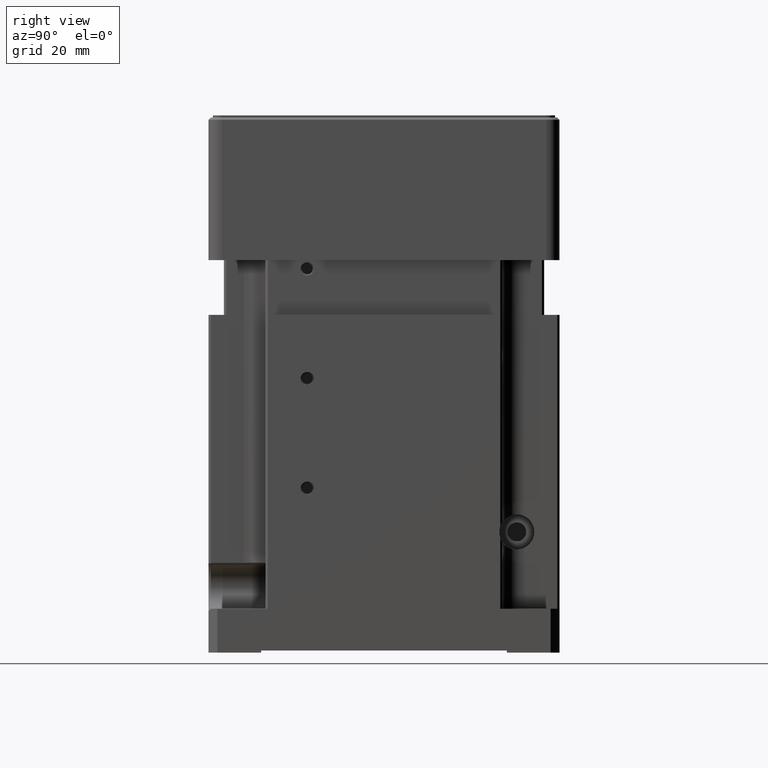
[diagram: clean part render]
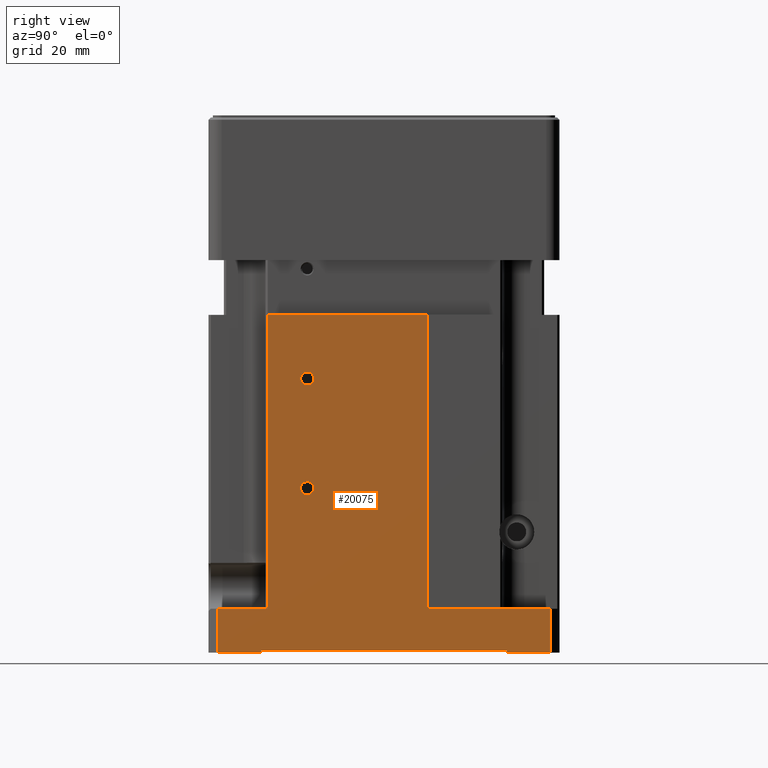
[diagram: same view with one face highlighted and labeled with its STEP entity id]
A machine part, right view. The second image highlights one B-rep face of the part: STEP entity #20075.
In plain terms, the highlighted planar face has unit normal (1, 0, 0).
Its self-contained STEP definition (entity closure, byte-faithful):
#988 = EDGE_CURVE ( 'NONE', #23494, #28617, #30825, .T. ) ;
#1009 = LINE ( 'NONE', #33449, #7324 ) ;
#1640 = DIRECTION ( 'NONE',  ( 0.000000000000000000, 0.000000000000000000, -1.000000000000000000 ) ) ;
#1961 = ORIENTED_EDGE ( 'NONE', *, *, #4837, .F. ) ;
#2348 = PLANE ( 'NONE',  #36127 ) ;
#2568 = ORIENTED_EDGE ( 'NONE', *, *, #6456, .F. ) ;
#3781 = VERTEX_POINT ( 'NONE', #13484 ) ;
#4111 = CARTESIAN_POINT ( 'NONE',  ( 40.00000000000000000, 28.00000000000000000, -10.00000000000000000 ) ) ;
#4299 = EDGE_CURVE ( 'NONE', #15861, #37710, #37614, .T. ) ;
#4385 = EDGE_CURVE ( 'NONE', #13564, #12888, #36425, .T. ) ;
#4479 = ORIENTED_EDGE ( 'NONE', *, *, #18604, .F. ) ;
#4837 = EDGE_CURVE ( 'NONE', #15473, #18441, #16424, .T. ) ;
#4859 = VECTOR ( 'NONE', #26946, 1000.000000000000000 ) ;
#4867 = FACE_BOUND ( 'NONE', #25379, .T. ) ;
#4869 = DIRECTION ( 'NONE',  ( 1.000000000000000000, 0.000000000000000000, 0.000000000000000000 ) ) ;
#4870 = EDGE_CURVE ( 'NONE', #37710, #19432, #23120, .T. ) ;
#5113 = EDGE_LOOP ( 'NONE', ( #30044, #26445, #4479, #29924, #25571, #35674, #11032, #12658, #21467, #1961, #17691, #26796 ) ) ;
#5131 = EDGE_CURVE ( 'NONE', #3781, #37586, #6621, .T. ) ;
#5235 = FACE_BOUND ( 'NONE', #15858, .T. ) ;
#5369 = VECTOR ( 'NONE', #1640, 1000.000000000000000 ) ;
#5545 = CARTESIAN_POINT ( 'NONE',  ( 40.00000000000000000, -26.50000000000000000, 0.000000000000000000 ) ) ;
#6219 = DIRECTION ( 'NONE',  ( 1.000000000000000000, 0.000000000000000000, 0.000000000000000000 ) ) ;
#6443 = VERTEX_POINT ( 'NONE', #31184 ) ;
#6456 = EDGE_CURVE ( 'NONE', #28617, #23494, #29513, .T. ) ;
#6621 = LINE ( 'NONE', #4111, #31114 ) ;
#6625 = LINE ( 'NONE', #18154, #26298 ) ;
#6846 = CARTESIAN_POINT ( 'NONE',  ( 40.00000000000000000, 10.00000000000000000, 0.000000000000000000 ) ) ;
#6963 = LINE ( 'NONE', #18664, #4859 ) ;
#7324 = VECTOR ( 'NONE', #24439, 1000.000000000000000 ) ;
#7553 = ORIENTED_EDGE ( 'NONE', *, *, #21522, .F. ) ;
#8966 = AXIS2_PLACEMENT_3D ( 'NONE', #17693, #14410, #20165 ) ;
#9328 = CARTESIAN_POINT ( 'NONE',  ( 40.00000000000000000, -38.00000000000000000, -10.00000000000000000 ) ) ;
#9457 = VECTOR ( 'NONE', #14906, 1000.000000000000000 ) ;
#9508 = DIRECTION ( 'NONE',  ( 0.000000000000000000, 0.000000000000000000, 1.000000000000000000 ) ) ;
#9530 = LINE ( 'NONE', #6846, #9457 ) ;
#9605 = CARTESIAN_POINT ( 'NONE',  ( 40.00000000000000000, -28.00000000000000000, -9.500000000000000000 ) ) ;
#9623 = DIRECTION ( 'NONE',  ( 0.000000000000000000, -1.000000000000000000, 0.000000000000000000 ) ) ;
#10631 = CARTESIAN_POINT ( 'NONE',  ( 40.00000000000000000, -38.00000000000000000, -10.00000000000000000 ) ) ;
#10857 = CARTESIAN_POINT ( 'NONE',  ( 40.00000000000000000, -38.00000000000000000, -10.00000000000000000 ) ) ;
#11032 = ORIENTED_EDGE ( 'NONE', *, *, #35791, .F. ) ;
#11088 = AXIS2_PLACEMENT_3D ( 'NONE', #35751, #17513, #9623 ) ;
#11698 = CIRCLE ( 'NONE', #11088, 1.500000000000001332 ) ;
#11862 = CARTESIAN_POINT ( 'NONE',  ( 40.00000000000000000, -28.00000000000000000, -10.00000000000000000 ) ) ;
#12658 = ORIENTED_EDGE ( 'NONE', *, *, #5131, .T. ) ;
#12888 = VERTEX_POINT ( 'NONE', #11862 ) ;
#13484 = CARTESIAN_POINT ( 'NONE',  ( 40.00000000000000000, 28.00000000000000000, -10.00000000000000000 ) ) ;
#13546 = DIRECTION ( 'NONE',  ( 0.000000000000000000, 1.000000000000000000, 0.000000000000000000 ) ) ;
#13564 = VERTEX_POINT ( 'NONE', #10631 ) ;
#13864 = CARTESIAN_POINT ( 'NONE',  ( 40.00000000000000000, -17.50000000000000000, 52.50000000000000000 ) ) ;
#14410 = DIRECTION ( 'NONE',  ( 1.000000000000000000, 0.000000000000000000, 0.000000000000000000 ) ) ;
#14845 = CARTESIAN_POINT ( 'NONE',  ( 40.00000000000000000, -17.50000000000000000, 27.50000000000000000 ) ) ;
#14906 = DIRECTION ( 'NONE',  ( 0.000000000000000000, 0.000000000000000000, 1.000000000000000000 ) ) ;
#15296 = VERTEX_POINT ( 'NONE', #32673 ) ;
#15473 = VERTEX_POINT ( 'NONE', #16082 ) ;
#15858 = EDGE_LOOP ( 'NONE', ( #7553, #18919 ) ) ;
#15861 = VERTEX_POINT ( 'NONE', #32160 ) ;
#15893 = CARTESIAN_POINT ( 'NONE',  ( 40.00000000000000000, 28.00000000000000000, -9.500000000000000000 ) ) ;
#16082 = CARTESIAN_POINT ( 'NONE',  ( 40.00000000000000000, 10.00000000000000000, 0.000000000000000000 ) ) ;
#16229 = CARTESIAN_POINT ( 'NONE',  ( 40.00000000000000000, 10.00000000000000000, 67.00000000000000000 ) ) ;
#16424 = LINE ( 'NONE', #34263, #37902 ) ;
#16577 = CARTESIAN_POINT ( 'NONE',  ( 40.00000000000000000, -40.00000000000000000, 0.000000000000000000 ) ) ;
#16580 = DIRECTION ( 'NONE',  ( 0.000000000000000000, 1.000000000000000000, 0.000000000000000000 ) ) ;
#16787 = CARTESIAN_POINT ( 'NONE',  ( 40.00000000000000000, -16.00000000000000000, 52.50000000000000000 ) ) ;
#17092 = AXIS2_PLACEMENT_3D ( 'NONE', #14845, #6219, #32711 ) ;
#17278 = EDGE_CURVE ( 'NONE', #18441, #37586, #30853, .T. ) ;
#17384 = CARTESIAN_POINT ( 'NONE',  ( 40.00000000000000000, 38.00000000000000000, 0.000000000000000000 ) ) ;
#17513 = DIRECTION ( 'NONE',  ( 1.000000000000000000, 0.000000000000000000, 0.000000000000000000 ) ) ;
#17691 = ORIENTED_EDGE ( 'NONE', *, *, #27167, .T. ) ;
#17693 = CARTESIAN_POINT ( 'NONE',  ( 40.00000000000000000, -17.50000000000000000, 52.50000000000000000 ) ) ;
#18154 = CARTESIAN_POINT ( 'NONE',  ( 40.00000000000000000, -28.00000000000000000, -10.00000000000000000 ) ) ;
#18292 = VECTOR ( 'NONE', #37161, 1000.000000000000000 ) ;
#18441 = VERTEX_POINT ( 'NONE', #17384 ) ;
#18604 = EDGE_CURVE ( 'NONE', #13564, #19432, #35811, .T. ) ;
#18664 = CARTESIAN_POINT ( 'NONE',  ( 40.00000000000000000, 28.00000000000000000, -10.00000000000000000 ) ) ;
#18919 = ORIENTED_EDGE ( 'NONE', *, *, #29115, .F. ) ;
#19432 = VERTEX_POINT ( 'NONE', #35473 ) ;
#19761 = EDGE_CURVE ( 'NONE', #12888, #15296, #6625, .T. ) ;
#20075 = ADVANCED_FACE ( 'NONE', ( #4867, #5235, #34418 ), #2348, .T. ) ;
#20165 = DIRECTION ( 'NONE',  ( 0.000000000000000000, -1.000000000000000000, 0.000000000000000000 ) ) ;
#20247 = CARTESIAN_POINT ( 'NONE',  ( 40.00000000000000000, -26.50000000000000000, 0.000000000000000000 ) ) ;
#21467 = ORIENTED_EDGE ( 'NONE', *, *, #17278, .F. ) ;
#21522 = EDGE_CURVE ( 'NONE', #25847, #6443, #30092, .T. ) ;
#21716 = EDGE_CURVE ( 'NONE', #15861, #28483, #1009, .T. ) ;
#23020 = CARTESIAN_POINT ( 'NONE',  ( 40.00000000000000000, -26.50000000000000000, 67.00000000000000000 ) ) ;
#23120 = LINE ( 'NONE', #20247, #35375 ) ;
#23494 = VERTEX_POINT ( 'NONE', #25977 ) ;
#24276 = DIRECTION ( 'NONE',  ( 0.000000000000000000, 1.000000000000000000, 0.000000000000000000 ) ) ;
#24439 = DIRECTION ( 'NONE',  ( 0.000000000000000000, 1.000000000000000000, 0.000000000000000000 ) ) ;
#25379 = EDGE_LOOP ( 'NONE', ( #2568, #29630 ) ) ;
#25571 = ORIENTED_EDGE ( 'NONE', *, *, #19761, .T. ) ;
#25847 = VERTEX_POINT ( 'NONE', #31430 ) ;
#25977 = CARTESIAN_POINT ( 'NONE',  ( 40.00000000000000000, -19.00000000000000000, 52.50000000000000000 ) ) ;
#26298 = VECTOR ( 'NONE', #9508, 1000.000000000000000 ) ;
#26445 = ORIENTED_EDGE ( 'NONE', *, *, #4870, .T. ) ;
#26604 = DIRECTION ( 'NONE',  ( 0.000000000000000000, -1.000000000000000000, 0.000000000000000000 ) ) ;
#26796 = ORIENTED_EDGE ( 'NONE', *, *, #21716, .F. ) ;
#26946 = DIRECTION ( 'NONE',  ( 0.000000000000000000, 0.000000000000000000, 1.000000000000000000 ) ) ;
#27167 = EDGE_CURVE ( 'NONE', #15473, #28483, #9530, .T. ) ;
#27479 = VECTOR ( 'NONE', #34717, 1000.000000000000000 ) ;
#28483 = VERTEX_POINT ( 'NONE', #16229 ) ;
#28617 = VERTEX_POINT ( 'NONE', #16787 ) ;
#28663 = DIRECTION ( 'NONE',  ( 0.000000000000000000, 1.000000000000000000, 0.000000000000000000 ) ) ;
#28679 = VECTOR ( 'NONE', #36372, 1000.000000000000000 ) ;
#29115 = EDGE_CURVE ( 'NONE', #6443, #25847, #11698, .T. ) ;
#29513 = CIRCLE ( 'NONE', #33177, 1.500000000000001332 ) ;
#29630 = ORIENTED_EDGE ( 'NONE', *, *, #988, .F. ) ;
#29924 = ORIENTED_EDGE ( 'NONE', *, *, #4385, .T. ) ;
#30044 = ORIENTED_EDGE ( 'NONE', *, *, #4299, .T. ) ;
#30092 = CIRCLE ( 'NONE', #17092, 1.500000000000001332 ) ;
#30172 = LINE ( 'NONE', #9605, #34774 ) ;
#30667 = CARTESIAN_POINT ( 'NONE',  ( 40.00000000000000000, 38.00000000000000000, 0.000000000000000000 ) ) ;
#30825 = CIRCLE ( 'NONE', #8966, 1.500000000000001332 ) ;
#30853 = LINE ( 'NONE', #30667, #5369 ) ;
#31114 = VECTOR ( 'NONE', #24276, 1000.000000000000000 ) ;
#31184 = CARTESIAN_POINT ( 'NONE',  ( 40.00000000000000000, -19.00000000000000000, 27.50000000000000000 ) ) ;
#31430 = CARTESIAN_POINT ( 'NONE',  ( 40.00000000000000000, -16.00000000000000000, 27.50000000000000000 ) ) ;
#31941 = DIRECTION ( 'NONE',  ( 1.000000000000000000, 0.000000000000000000, 0.000000000000000000 ) ) ;
#32160 = CARTESIAN_POINT ( 'NONE',  ( 40.00000000000000000, -26.50000000000000000, 67.00000000000000000 ) ) ;
#32673 = CARTESIAN_POINT ( 'NONE',  ( 40.00000000000000000, -28.00000000000000000, -9.500000000000000000 ) ) ;
#32711 = DIRECTION ( 'NONE',  ( 0.000000000000000000, 1.000000000000000000, 0.000000000000000000 ) ) ;
#33177 = AXIS2_PLACEMENT_3D ( 'NONE', #13864, #4869, #16580 ) ;
#33449 = CARTESIAN_POINT ( 'NONE',  ( 40.00000000000000000, -26.50000000000000000, 67.00000000000000000 ) ) ;
#33968 = CARTESIAN_POINT ( 'NONE',  ( 40.00000000000000000, 38.00000000000000000, -10.00000000000000000 ) ) ;
#34241 = EDGE_CURVE ( 'NONE', #15296, #37905, #30172, .T. ) ;
#34263 = CARTESIAN_POINT ( 'NONE',  ( 40.00000000000000000, 10.00000000000000000, 0.000000000000000000 ) ) ;
#34418 = FACE_OUTER_BOUND ( 'NONE', #5113, .T. ) ;
#34717 = DIRECTION ( 'NONE',  ( 0.000000000000000000, 0.000000000000000000, -1.000000000000000000 ) ) ;
#34774 = VECTOR ( 'NONE', #36294, 1000.000000000000000 ) ;
#35375 = VECTOR ( 'NONE', #26604, 1000.000000000000000 ) ;
#35473 = CARTESIAN_POINT ( 'NONE',  ( 40.00000000000000000, -38.00000000000000000, 0.000000000000000000 ) ) ;
#35674 = ORIENTED_EDGE ( 'NONE', *, *, #34241, .T. ) ;
#35751 = CARTESIAN_POINT ( 'NONE',  ( 40.00000000000000000, -17.50000000000000000, 27.50000000000000000 ) ) ;
#35791 = EDGE_CURVE ( 'NONE', #3781, #37905, #6963, .T. ) ;
#35811 = LINE ( 'NONE', #9328, #28679 ) ;
#36127 = AXIS2_PLACEMENT_3D ( 'NONE', #16577, #31941, #28663 ) ;
#36294 = DIRECTION ( 'NONE',  ( 0.000000000000000000, 1.000000000000000000, 0.000000000000000000 ) ) ;
#36372 = DIRECTION ( 'NONE',  ( 0.000000000000000000, 0.000000000000000000, 1.000000000000000000 ) ) ;
#36425 = LINE ( 'NONE', #10857, #18292 ) ;
#37161 = DIRECTION ( 'NONE',  ( 0.000000000000000000, 1.000000000000000000, 0.000000000000000000 ) ) ;
#37586 = VERTEX_POINT ( 'NONE', #33968 ) ;
#37614 = LINE ( 'NONE', #23020, #27479 ) ;
#37710 = VERTEX_POINT ( 'NONE', #5545 ) ;
#37902 = VECTOR ( 'NONE', #13546, 1000.000000000000000 ) ;
#37905 = VERTEX_POINT ( 'NONE', #15893 ) ;